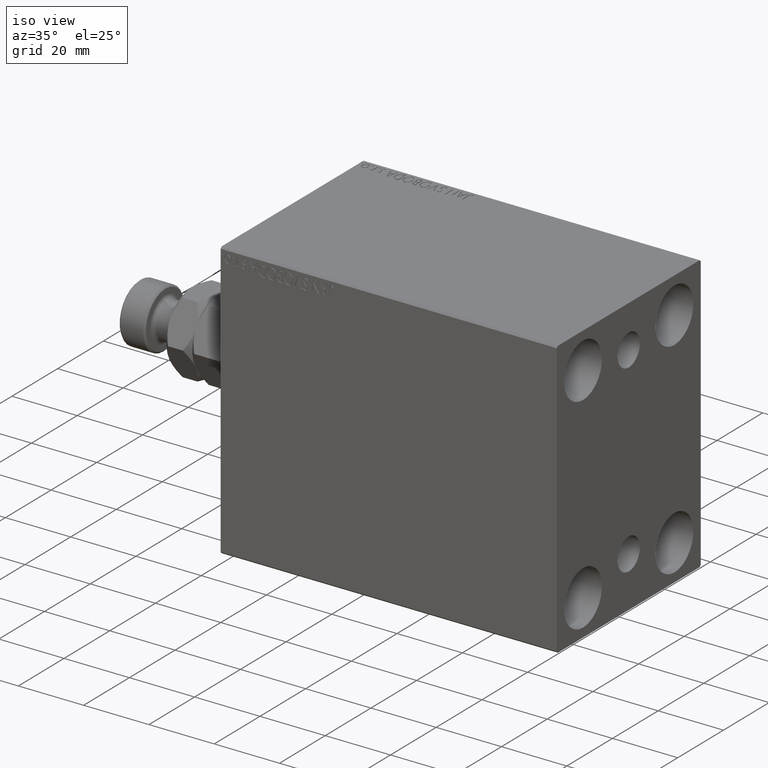
[diagram: clean part render]
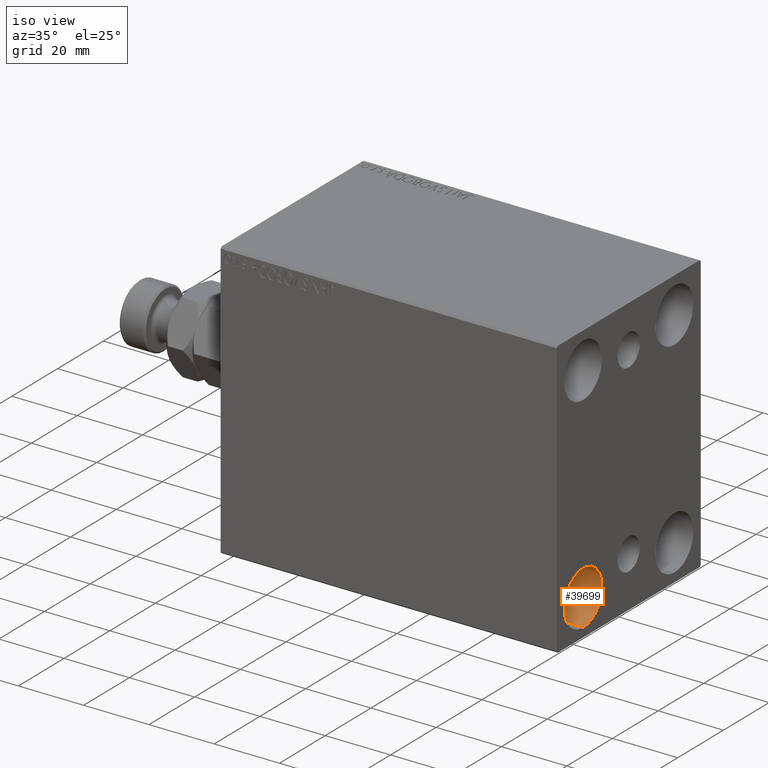
[diagram: same view with one face highlighted and labeled with its STEP entity id]
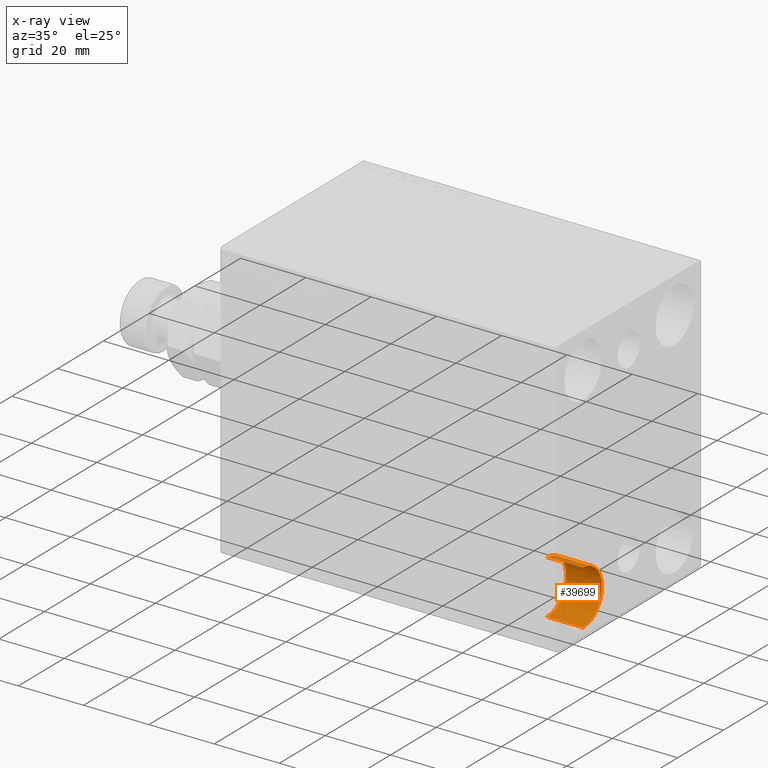
[diagram: x-ray of the same camera — body ghosted, the highlighted face saturated]
A machine part, iso view. The second image highlights one B-rep face of the part: STEP entity #39699.
The next image is the same camera in x-ray: the body ghosted, the highlighted face saturated — about 0% of this face is hidden behind the body in this view.
In plain terms, the highlighted cylindrical surface (edge-blend (fillet) strip) has radius 8.25 mm, axis along (1, 0, 0).
Its self-contained STEP definition (entity closure, byte-faithful):
#2785 = AXIS2_PLACEMENT_3D ( 'NONE', #26472, #8786, #22810 ) ;
#4564 = CARTESIAN_POINT ( 'NONE',  ( 92.00000000000000000, -20.00000000000000355, -31.49999999999999289 ) ) ;
#7026 = EDGE_CURVE ( 'NONE', #23777, #32209, #15155, .T. ) ;
#7716 = ORIENTED_EDGE ( 'NONE', *, *, #7026, .F. ) ;
#8786 = DIRECTION ( 'NONE',  ( 1.000000000000000000, -0.000000000000000000, -0.000000000000000000 ) ) ;
#8939 = CARTESIAN_POINT ( 'NONE',  ( 92.00000000000000000, -20.00000000000000355, -23.24999999999999289 ) ) ;
#9009 = CYLINDRICAL_SURFACE ( 'NONE', #2785, 8.250000000000000000 ) ;
#9605 = CARTESIAN_POINT ( 'NONE',  ( 92.00000000000000000, -20.00000000000000355, -39.74999999999999289 ) ) ;
#9827 = VECTOR ( 'NONE', #40837, 1000.000000000000000 ) ;
#9902 = CARTESIAN_POINT ( 'NONE',  ( 103.0000000000000000, -20.00000000000000355, -39.74999999999999289 ) ) ;
#12864 = DIRECTION ( 'NONE',  ( -1.000000000000000000, -0.000000000000000000, -0.000000000000000000 ) ) ;
#15021 = VERTEX_POINT ( 'NONE', #25954 ) ;
#15155 = LINE ( 'NONE', #8939, #36443 ) ;
#15813 = CIRCLE ( 'NONE', #41469, 8.250000000000000000 ) ;
#19210 = CARTESIAN_POINT ( 'NONE',  ( 92.00000000000000000, -20.00000000000000355, -23.24999999999999289 ) ) ;
#19211 = VERTEX_POINT ( 'NONE', #9902 ) ;
#22356 = FACE_OUTER_BOUND ( 'NONE', #26304, .T. ) ;
#22511 = AXIS2_PLACEMENT_3D ( 'NONE', #4564, #29581, #32118 ) ;
#22810 = DIRECTION ( 'NONE',  ( 0.000000000000000000, 0.000000000000000000, -1.000000000000000000 ) ) ;
#22951 = DIRECTION ( 'NONE',  ( 1.000000000000000000, -0.000000000000000000, -0.000000000000000000 ) ) ;
#23777 = VERTEX_POINT ( 'NONE', #19210 ) ;
#25954 = CARTESIAN_POINT ( 'NONE',  ( 92.00000000000000000, -20.00000000000000355, -39.74999999999999289 ) ) ;
#26304 = EDGE_LOOP ( 'NONE', ( #7716, #43691, #36400, #33575 ) ) ;
#26472 = CARTESIAN_POINT ( 'NONE',  ( 92.00000000000000000, -20.00000000000000355, -31.49999999999999289 ) ) ;
#26839 = LINE ( 'NONE', #9605, #9827 ) ;
#29581 = DIRECTION ( 'NONE',  ( -1.000000000000000000, -0.000000000000000000, -0.000000000000000000 ) ) ;
#29813 = EDGE_CURVE ( 'NONE', #15021, #19211, #26839, .T. ) ;
#30102 = DIRECTION ( 'NONE',  ( 0.000000000000000000, 0.000000000000000000, 1.000000000000000000 ) ) ;
#32118 = DIRECTION ( 'NONE',  ( 0.000000000000000000, 0.000000000000000000, 1.000000000000000000 ) ) ;
#32209 = VERTEX_POINT ( 'NONE', #33812 ) ;
#33292 = EDGE_CURVE ( 'NONE', #32209, #19211, #15813, .T. ) ;
#33575 = ORIENTED_EDGE ( 'NONE', *, *, #33292, .F. ) ;
#33812 = CARTESIAN_POINT ( 'NONE',  ( 103.0000000000000000, -20.00000000000000355, -23.24999999999999289 ) ) ;
#35318 = EDGE_CURVE ( 'NONE', #23777, #15021, #43019, .T. ) ;
#36400 = ORIENTED_EDGE ( 'NONE', *, *, #29813, .T. ) ;
#36443 = VECTOR ( 'NONE', #22951, 1000.000000000000000 ) ;
#37208 = CARTESIAN_POINT ( 'NONE',  ( 103.0000000000000000, -20.00000000000000355, -31.49999999999999289 ) ) ;
#39699 = ADVANCED_FACE ( 'NONE', ( #22356 ), #9009, .F. ) ;
#40837 = DIRECTION ( 'NONE',  ( 1.000000000000000000, -0.000000000000000000, -0.000000000000000000 ) ) ;
#41469 = AXIS2_PLACEMENT_3D ( 'NONE', #37208, #12864, #30102 ) ;
#43019 = CIRCLE ( 'NONE', #22511, 8.250000000000000000 ) ;
#43691 = ORIENTED_EDGE ( 'NONE', *, *, #35318, .T. ) ;